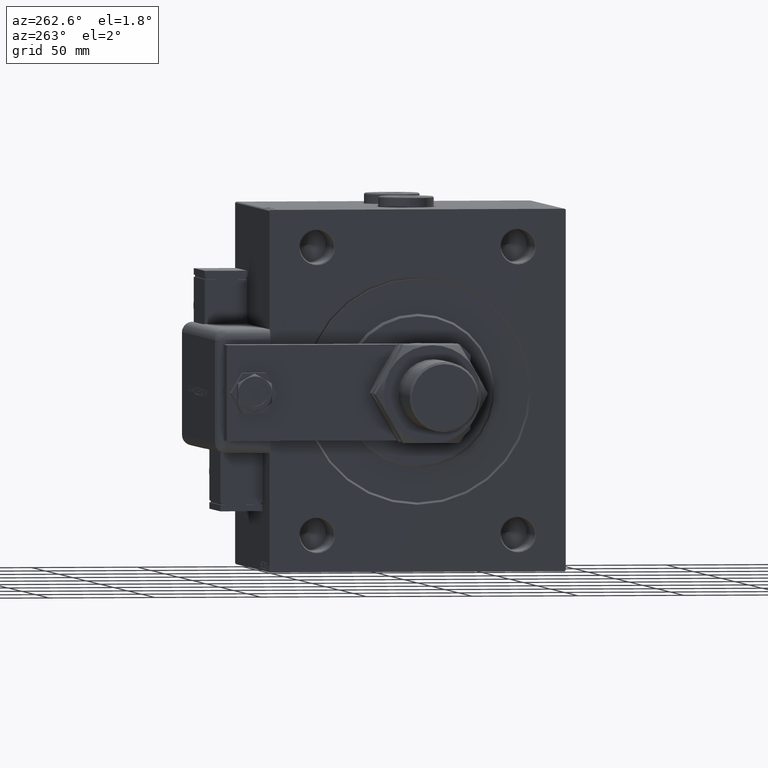
[diagram: clean part render]
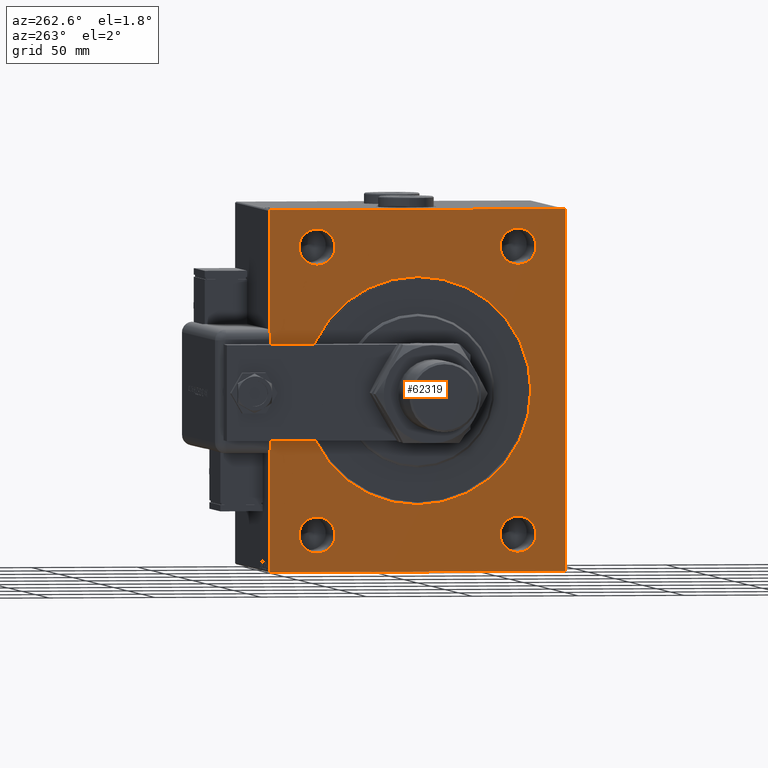
[diagram: same view with one face highlighted and labeled with its STEP entity id]
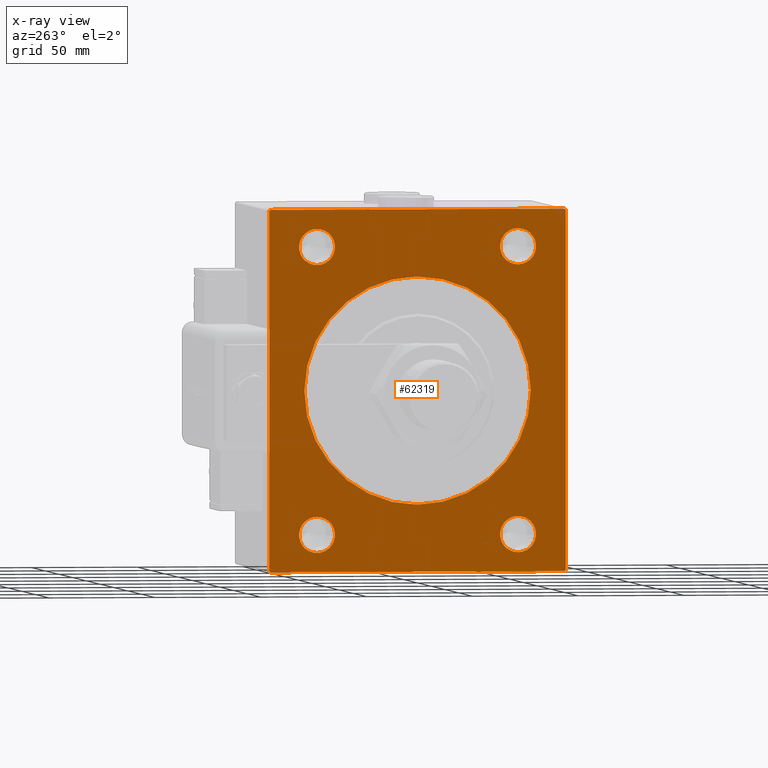
[diagram: x-ray of the same camera — body ghosted, the highlighted face saturated]
A machine part, auxiliary view. The second image highlights one B-rep face of the part: STEP entity #62319.
The next image is the same camera in x-ray: the body ghosted, the highlighted face saturated — about 0% of this face is hidden behind the body in this view.
In plain terms, the highlighted planar face has unit normal (1, 0, 0).
Its self-contained STEP definition (entity closure, byte-faithful):
#72 = DIRECTION ( 'NONE',  ( 0.000000000000000000, 0.000000000000000000, -1.000000000000000000 ) ) ;
#287 = DIRECTION ( 'NONE',  ( 0.000000000000000000, 0.000000000000000000, -1.000000000000000000 ) ) ;
#876 = ORIENTED_EDGE ( 'NONE', *, *, #49735, .T. ) ;
#1094 = EDGE_CURVE ( 'NONE', #45373, #4091, #37566, .T. ) ;
#1445 = CARTESIAN_POINT ( 'NONE',  ( 0.000000000000000000, 47.50000000000000000, -59.00000000000001421 ) ) ;
#1936 = LINE ( 'NONE', #45824, #54544 ) ;
#2561 = EDGE_CURVE ( 'NONE', #52544, #16806, #56969, .T. ) ;
#2853 = EDGE_LOOP ( 'NONE', ( #4412, #28963 ) ) ;
#3090 = AXIS2_PLACEMENT_3D ( 'NONE', #10842, #44532, #15285 ) ;
#4091 = VERTEX_POINT ( 'NONE', #22372 ) ;
#4117 = EDGE_LOOP ( 'NONE', ( #60721, #14930, #11860, #50531, #62132, #39403, #25295, #876 ) ) ;
#4412 = ORIENTED_EDGE ( 'NONE', *, *, #52165, .T. ) ;
#4516 = CARTESIAN_POINT ( 'NONE',  ( 0.000000000000000000, 47.50000000000000000, 67.49999999999998579 ) ) ;
#4862 = CARTESIAN_POINT ( 'NONE',  ( 0.000000000000000000, 47.50000000000000000, -67.50000000000001421 ) ) ;
#5669 = CARTESIAN_POINT ( 'NONE',  ( 0.000000000000000000, 47.50000000000000000, 58.99999999999998579 ) ) ;
#6310 = CARTESIAN_POINT ( 'NONE',  ( 0.000000000000000000, 0.000000000000000000, 0.000000000000000000 ) ) ;
#6346 = DIRECTION ( 'NONE',  ( 1.000000000000000000, 0.000000000000000000, 0.000000000000000000 ) ) ;
#6535 = DIRECTION ( 'NONE',  ( 1.000000000000000000, 0.000000000000000000, 0.000000000000000000 ) ) ;
#6950 = CARTESIAN_POINT ( 'NONE',  ( 0.000000000000000000, -47.50000000000000000, 76.00000000000000000 ) ) ;
#7200 = AXIS2_PLACEMENT_3D ( 'NONE', #49447, #6535, #25622 ) ;
#7217 = CARTESIAN_POINT ( 'NONE',  ( 0.000000000000000000, 47.50000000000000000, 76.00000000000000000 ) ) ;
#7909 = AXIS2_PLACEMENT_3D ( 'NONE', #6310, #36170, #25705 ) ;
#8014 = ORIENTED_EDGE ( 'NONE', *, *, #61539, .T. ) ;
#8737 = EDGE_CURVE ( 'NONE', #15673, #18446, #59429, .T. ) ;
#10466 = AXIS2_PLACEMENT_3D ( 'NONE', #25333, #44719, #25652 ) ;
#10842 = CARTESIAN_POINT ( 'NONE',  ( 0.000000000000000000, -47.50000000000000000, -67.50000000000001421 ) ) ;
#10869 = DIRECTION ( 'NONE',  ( 1.000000000000000000, 0.000000000000000000, 0.000000000000000000 ) ) ;
#11860 = ORIENTED_EDGE ( 'NONE', *, *, #50199, .F. ) ;
#12795 = CIRCLE ( 'NONE', #48296, 8.500000000000007105 ) ;
#13941 = VERTEX_POINT ( 'NONE', #5669 ) ;
#13957 = ORIENTED_EDGE ( 'NONE', *, *, #46413, .T. ) ;
#13959 = VERTEX_POINT ( 'NONE', #45094 ) ;
#14378 = DIRECTION ( 'NONE',  ( 0.000000000000000000, 0.000000000000000000, -1.000000000000000000 ) ) ;
#14723 = DIRECTION ( 'NONE',  ( 1.000000000000000000, 0.000000000000000000, 0.000000000000000000 ) ) ;
#14930 = ORIENTED_EDGE ( 'NONE', *, *, #52233, .T. ) ;
#15285 = DIRECTION ( 'NONE',  ( 0.000000000000000000, 0.000000000000000000, -1.000000000000000000 ) ) ;
#15437 = FACE_BOUND ( 'NONE', #34097, .T. ) ;
#15673 = VERTEX_POINT ( 'NONE', #39796 ) ;
#16135 = DIRECTION ( 'NONE',  ( 0.000000000000000000, 0.000000000000000000, -1.000000000000000000 ) ) ;
#16144 = CARTESIAN_POINT ( 'NONE',  ( 0.000000000000000000, -47.50000000000000000, 58.99999999999998579 ) ) ;
#16302 = CIRCLE ( 'NONE', #3090, 8.500000000000007105 ) ;
#16369 = VERTEX_POINT ( 'NONE', #21420 ) ;
#16806 = VERTEX_POINT ( 'NONE', #29615 ) ;
#17148 = VERTEX_POINT ( 'NONE', #38979 ) ;
#17804 = DIRECTION ( 'NONE',  ( -0.000000000000000000, -0.7071067811865574537, 0.7071067811865376918 ) ) ;
#18446 = VERTEX_POINT ( 'NONE', #57944 ) ;
#18665 = CARTESIAN_POINT ( 'NONE',  ( 0.000000000000000000, 70.00000000000000000, 85.00000000000001421 ) ) ;
#20812 = AXIS2_PLACEMENT_3D ( 'NONE', #4862, #14723, #72 ) ;
#21420 = CARTESIAN_POINT ( 'NONE',  ( 0.000000000000000000, -69.49999999999997158, -85.00000000000000000 ) ) ;
#21628 = CIRCLE ( 'NONE', #10466, 8.500000000000007105 ) ;
#22372 = CARTESIAN_POINT ( 'NONE',  ( 0.000000000000000000, 0.000000000000000000, 53.50000000000000000 ) ) ;
#23351 = CARTESIAN_POINT ( 'NONE',  ( 0.000000000000000000, 70.00000000000001421, -84.49999999999997158 ) ) ;
#23419 = AXIS2_PLACEMENT_3D ( 'NONE', #40310, #54628, #16135 ) ;
#23714 = FACE_BOUND ( 'NONE', #2853, .T. ) ;
#23918 = DIRECTION ( 'NONE',  ( 1.000000000000000000, 0.000000000000000000, 0.000000000000000000 ) ) ;
#24135 = VECTOR ( 'NONE', #53509, 1000.000000000000000 ) ;
#24457 = AXIS2_PLACEMENT_3D ( 'NONE', #54439, #10869, #35326 ) ;
#25098 = VECTOR ( 'NONE', #44693, 1000.000000000000000 ) ;
#25205 = VECTOR ( 'NONE', #50238, 1000.000000000000000 ) ;
#25295 = ORIENTED_EDGE ( 'NONE', *, *, #29500, .F. ) ;
#25333 = CARTESIAN_POINT ( 'NONE',  ( 0.000000000000000000, -47.50000000000000000, 67.49999999999998579 ) ) ;
#25622 = DIRECTION ( 'NONE',  ( 0.000000000000000000, 0.000000000000000000, -1.000000000000000000 ) ) ;
#25652 = DIRECTION ( 'NONE',  ( 0.000000000000000000, 0.000000000000000000, -1.000000000000000000 ) ) ;
#25705 = DIRECTION ( 'NONE',  ( 0.000000000000000000, 0.000000000000000000, -1.000000000000000000 ) ) ;
#25745 = DIRECTION ( 'NONE',  ( 0.000000000000000000, 0.000000000000000000, -1.000000000000000000 ) ) ;
#25975 = VERTEX_POINT ( 'NONE', #7217 ) ;
#27977 = EDGE_CURVE ( 'NONE', #13959, #33166, #50396, .T. ) ;
#28963 = ORIENTED_EDGE ( 'NONE', *, *, #1094, .T. ) ;
#29122 = ORIENTED_EDGE ( 'NONE', *, *, #40653, .T. ) ;
#29500 = EDGE_CURVE ( 'NONE', #16369, #53372, #57983, .T. ) ;
#29615 = CARTESIAN_POINT ( 'NONE',  ( 0.000000000000000000, 47.50000000000000000, -76.00000000000002842 ) ) ;
#30858 = CARTESIAN_POINT ( 'NONE',  ( 0.000000000000000000, 70.00000000000001421, -85.00000000000000000 ) ) ;
#31330 = CARTESIAN_POINT ( 'NONE',  ( 0.000000000000000000, -69.49999999999995737, 84.99999999999998579 ) ) ;
#32557 = EDGE_LOOP ( 'NONE', ( #8014, #13957 ) ) ;
#32815 = CARTESIAN_POINT ( 'NONE',  ( 0.000000000000000000, 0.000000000000000000, 0.000000000000000000 ) ) ;
#33166 = VERTEX_POINT ( 'NONE', #56527 ) ;
#34084 = CARTESIAN_POINT ( 'NONE',  ( 0.000000000000000000, 6.551860375438339893E-15, -53.50000000000000000 ) ) ;
#34097 = EDGE_LOOP ( 'NONE', ( #56113, #29122 ) ) ;
#35326 = DIRECTION ( 'NONE',  ( 0.000000000000000000, 0.000000000000000000, -1.000000000000000000 ) ) ;
#36170 = DIRECTION ( 'NONE',  ( 1.000000000000000000, 0.000000000000000000, 0.000000000000000000 ) ) ;
#36625 = ORIENTED_EDGE ( 'NONE', *, *, #43822, .T. ) ;
#37302 = EDGE_CURVE ( 'NONE', #49143, #40913, #21628, .T. ) ;
#37566 = CIRCLE ( 'NONE', #56872, 53.50000000000000000 ) ;
#37969 = LINE ( 'NONE', #23351, #40158 ) ;
#38063 = DIRECTION ( 'NONE',  ( 0.000000000000000000, -1.000000000000000000, -1.982541115402065110E-16 ) ) ;
#38251 = CARTESIAN_POINT ( 'NONE',  ( 0.000000000000000000, -70.00000000000000000, -85.00000000000000000 ) ) ;
#38478 = CARTESIAN_POINT ( 'NONE',  ( 0.000000000000000000, -47.50000000000000000, -67.50000000000001421 ) ) ;
#38979 = CARTESIAN_POINT ( 'NONE',  ( 0.000000000000000000, -47.50000000000000000, -76.00000000000002842 ) ) ;
#38999 = EDGE_LOOP ( 'NONE', ( #54254, #36625 ) ) ;
#39403 = ORIENTED_EDGE ( 'NONE', *, *, #42181, .T. ) ;
#39642 = VECTOR ( 'NONE', #50176, 1000.000000000000000 ) ;
#39738 = EDGE_CURVE ( 'NONE', #25975, #13941, #58350, .T. ) ;
#39796 = CARTESIAN_POINT ( 'NONE',  ( 0.000000000000000000, 69.50000000000000000, 85.00000000000001421 ) ) ;
#39919 = FACE_BOUND ( 'NONE', #55735, .T. ) ;
#40158 = VECTOR ( 'NONE', #61857, 999.9999999999998863 ) ;
#40310 = CARTESIAN_POINT ( 'NONE',  ( 0.000000000000000000, -47.50000000000000000, 67.49999999999998579 ) ) ;
#40552 = FACE_BOUND ( 'NONE', #38999, .T. ) ;
#40653 = EDGE_CURVE ( 'NONE', #16806, #52544, #52311, .T. ) ;
#40913 = VERTEX_POINT ( 'NONE', #16144 ) ;
#41266 = VERTEX_POINT ( 'NONE', #62471 ) ;
#42181 = EDGE_CURVE ( 'NONE', #41266, #53372, #37969, .T. ) ;
#43104 = FACE_BOUND ( 'NONE', #32557, .T. ) ;
#43822 = EDGE_CURVE ( 'NONE', #13941, #25975, #12795, .T. ) ;
#44532 = DIRECTION ( 'NONE',  ( 1.000000000000000000, 0.000000000000000000, 0.000000000000000000 ) ) ;
#44693 = DIRECTION ( 'NONE',  ( 0.000000000000000000, 0.000000000000000000, -1.000000000000000000 ) ) ;
#44719 = DIRECTION ( 'NONE',  ( 1.000000000000000000, 0.000000000000000000, 0.000000000000000000 ) ) ;
#45094 = CARTESIAN_POINT ( 'NONE',  ( 0.000000000000000000, -70.00000000000000000, 84.49999999999994316 ) ) ;
#45100 = CARTESIAN_POINT ( 'NONE',  ( 0.000000000000000000, 69.50000000000000000, 85.00000000000001421 ) ) ;
#45373 = VERTEX_POINT ( 'NONE', #34084 ) ;
#45824 = CARTESIAN_POINT ( 'NONE',  ( 0.000000000000000000, -69.49999999999997158, -85.00000000000000000 ) ) ;
#46275 = CIRCLE ( 'NONE', #58479, 8.500000000000007105 ) ;
#46413 = EDGE_CURVE ( 'NONE', #17148, #61494, #46275, .T. ) ;
#48296 = AXIS2_PLACEMENT_3D ( 'NONE', #59457, #6346, #25745 ) ;
#48444 = CARTESIAN_POINT ( 'NONE',  ( 0.000000000000000000, 69.50000000000000000, -85.00000000000000000 ) ) ;
#49143 = VERTEX_POINT ( 'NONE', #6950 ) ;
#49447 = CARTESIAN_POINT ( 'NONE',  ( 0.000000000000000000, 0.000000000000000000, 0.000000000000000000 ) ) ;
#49507 = ORIENTED_EDGE ( 'NONE', *, *, #37302, .T. ) ;
#49735 = EDGE_CURVE ( 'NONE', #16369, #33166, #1936, .T. ) ;
#50176 = DIRECTION ( 'NONE',  ( -0.000000000000000000, 0.7071067811865573427, -0.7071067811865378028 ) ) ;
#50199 = EDGE_CURVE ( 'NONE', #15673, #56036, #52703, .T. ) ;
#50238 = DIRECTION ( 'NONE',  ( 0.000000000000000000, -8.163404592832031500E-17, 1.000000000000000000 ) ) ;
#50396 = LINE ( 'NONE', #58688, #25098 ) ;
#50470 = LINE ( 'NONE', #60667, #61758 ) ;
#50478 = VECTOR ( 'NONE', #38063, 1000.000000000000000 ) ;
#50531 = ORIENTED_EDGE ( 'NONE', *, *, #8737, .T. ) ;
#50707 = FACE_OUTER_BOUND ( 'NONE', #4117, .T. ) ;
#51840 = CIRCLE ( 'NONE', #23419, 8.500000000000007105 ) ;
#51946 = EDGE_CURVE ( 'NONE', #41266, #18446, #54715, .T. ) ;
#52165 = EDGE_CURVE ( 'NONE', #4091, #45373, #54629, .T. ) ;
#52216 = DIRECTION ( 'NONE',  ( 1.000000000000000000, 0.000000000000000000, 0.000000000000000000 ) ) ;
#52233 = EDGE_CURVE ( 'NONE', #13959, #56036, #50470, .T. ) ;
#52311 = CIRCLE ( 'NONE', #20812, 8.500000000000007105 ) ;
#52544 = VERTEX_POINT ( 'NONE', #1445 ) ;
#52703 = LINE ( 'NONE', #18665, #50478 ) ;
#53372 = VERTEX_POINT ( 'NONE', #48444 ) ;
#53509 = DIRECTION ( 'NONE',  ( 0.000000000000000000, 1.000000000000000000, 0.000000000000000000 ) ) ;
#53745 = DIRECTION ( 'NONE',  ( 1.000000000000000000, 0.000000000000000000, 0.000000000000000000 ) ) ;
#54254 = ORIENTED_EDGE ( 'NONE', *, *, #39738, .T. ) ;
#54439 = CARTESIAN_POINT ( 'NONE',  ( 0.000000000000000000, 47.50000000000000000, -67.50000000000001421 ) ) ;
#54544 = VECTOR ( 'NONE', #17804, 999.9999999999998863 ) ;
#54628 = DIRECTION ( 'NONE',  ( 1.000000000000000000, 0.000000000000000000, 0.000000000000000000 ) ) ;
#54629 = CIRCLE ( 'NONE', #7909, 53.50000000000000000 ) ;
#54715 = LINE ( 'NONE', #30858, #25205 ) ;
#55277 = DIRECTION ( 'NONE',  ( -0.000000000000000000, 0.7071067811865474617, 0.7071067811865474617 ) ) ;
#55735 = EDGE_LOOP ( 'NONE', ( #49507, #57585 ) ) ;
#56036 = VERTEX_POINT ( 'NONE', #31330 ) ;
#56113 = ORIENTED_EDGE ( 'NONE', *, *, #2561, .T. ) ;
#56527 = CARTESIAN_POINT ( 'NONE',  ( 0.000000000000000000, -70.00000000000000000, -84.49999999999998579 ) ) ;
#56872 = AXIS2_PLACEMENT_3D ( 'NONE', #32815, #52216, #61469 ) ;
#56969 = CIRCLE ( 'NONE', #24457, 8.500000000000007105 ) ;
#57311 = AXIS2_PLACEMENT_3D ( 'NONE', #4516, #23918, #14378 ) ;
#57585 = ORIENTED_EDGE ( 'NONE', *, *, #62031, .T. ) ;
#57944 = CARTESIAN_POINT ( 'NONE',  ( 0.000000000000000000, 70.00000000000000000, 84.50000000000002842 ) ) ;
#57983 = LINE ( 'NONE', #38251, #24135 ) ;
#58350 = CIRCLE ( 'NONE', #57311, 8.500000000000007105 ) ;
#58479 = AXIS2_PLACEMENT_3D ( 'NONE', #38478, #53745, #287 ) ;
#58534 = CARTESIAN_POINT ( 'NONE',  ( 0.000000000000000000, -47.50000000000000000, -59.00000000000001421 ) ) ;
#58688 = CARTESIAN_POINT ( 'NONE',  ( 0.000000000000000000, -70.00000000000000000, 84.99999999999998579 ) ) ;
#59333 = PLANE ( 'NONE',  #7200 ) ;
#59429 = LINE ( 'NONE', #45100, #39642 ) ;
#59457 = CARTESIAN_POINT ( 'NONE',  ( 0.000000000000000000, 47.50000000000000000, 67.49999999999998579 ) ) ;
#60667 = CARTESIAN_POINT ( 'NONE',  ( 0.000000000000000000, -70.00000000000000000, 84.49999999999994316 ) ) ;
#60721 = ORIENTED_EDGE ( 'NONE', *, *, #27977, .F. ) ;
#61469 = DIRECTION ( 'NONE',  ( 0.000000000000000000, 0.000000000000000000, -1.000000000000000000 ) ) ;
#61494 = VERTEX_POINT ( 'NONE', #58534 ) ;
#61539 = EDGE_CURVE ( 'NONE', #61494, #17148, #16302, .T. ) ;
#61758 = VECTOR ( 'NONE', #55277, 1000.000000000000114 ) ;
#61857 = DIRECTION ( 'NONE',  ( 0.000000000000000000, -0.7071067811865376918, -0.7071067811865574537 ) ) ;
#62031 = EDGE_CURVE ( 'NONE', #40913, #49143, #51840, .T. ) ;
#62132 = ORIENTED_EDGE ( 'NONE', *, *, #51946, .F. ) ;
#62319 = ADVANCED_FACE ( 'NONE', ( #23714, #43104, #39919, #40552, #15437, #50707 ), #59333, .F. ) ;
#62471 = CARTESIAN_POINT ( 'NONE',  ( 0.000000000000000000, 70.00000000000001421, -84.49999999999997158 ) ) ;